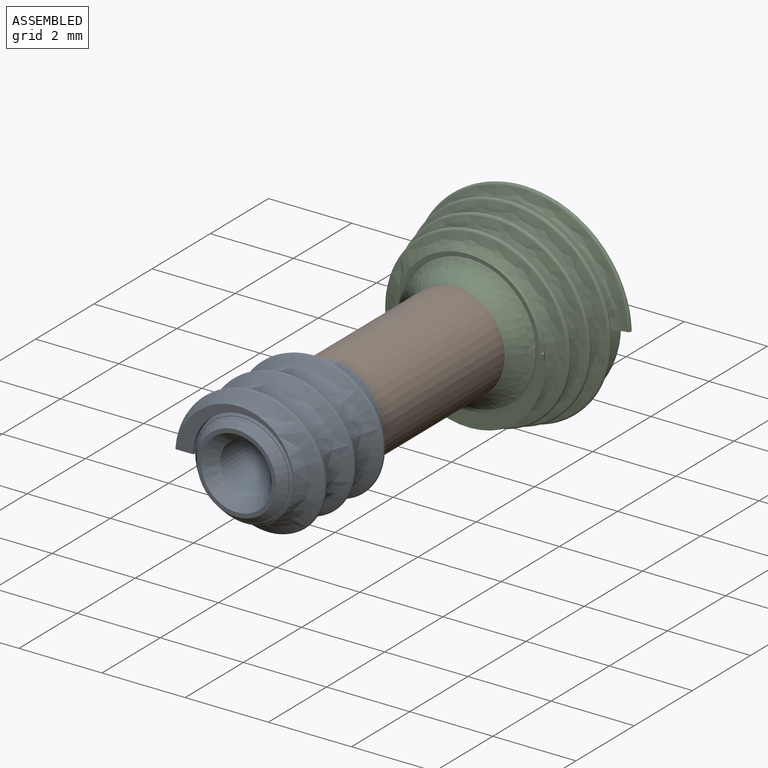
[diagram: assembled view]
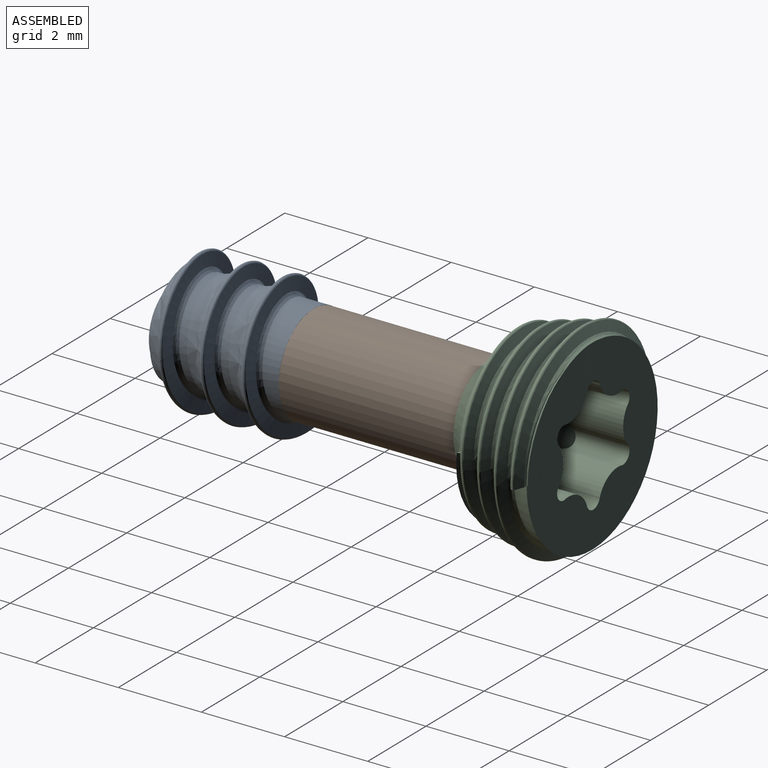
[diagram: assembled view, second angle]
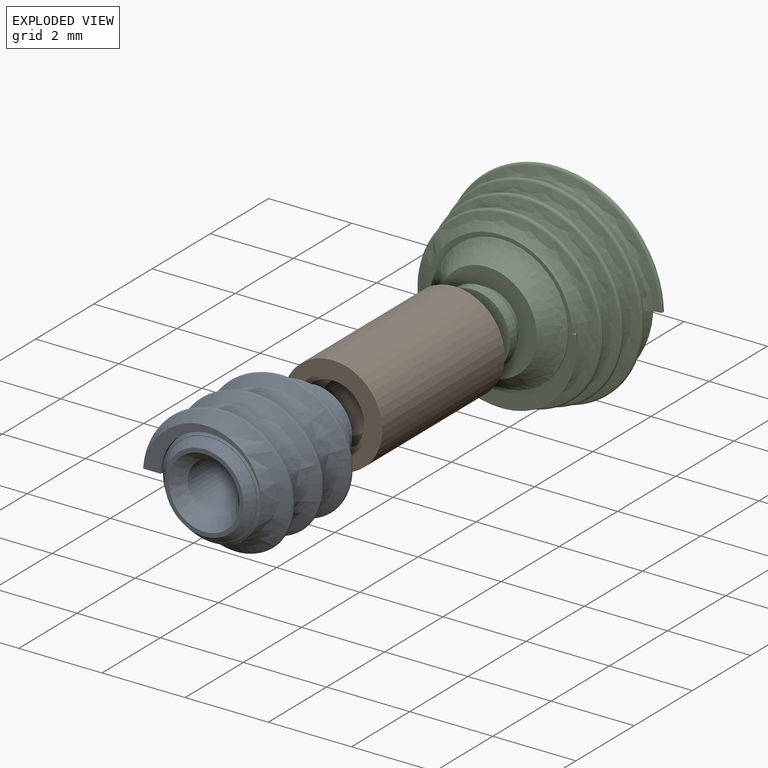
[diagram: exploded view]
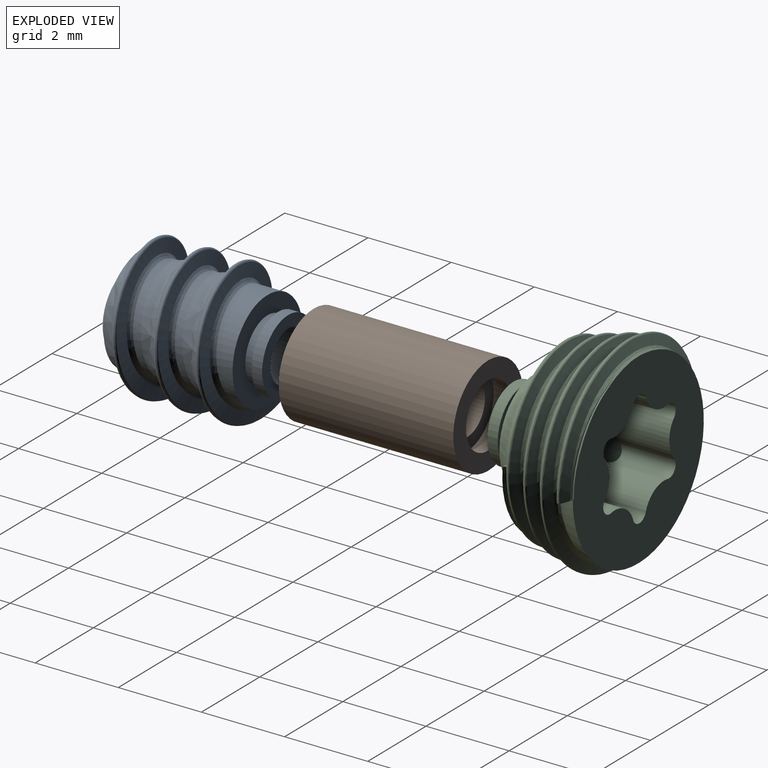
[diagram: exploded view, second angle]
ASSEMBLY  parts=3 mates=2
PART A: 21 faces, bbox 3.7x4.6x4.2 mm
  f0: cone r=0.95mm half-angle=40deg, axis (0,1,0), area 1.7mm2, adj f8,f16
  f1: cone r=0.95mm half-angle=40deg, axis (0,1,0), area 0.8mm2, adj f2,f6,f15
  f2: bspline ~2.4x2.32mm, area 0.4mm2, adj f1,f3,f5,f14
  f3: plane 0.43x0.21mm, normal (0,-0.13,-0.99), area 0mm2, adj f2,f4,f6,f12,f13,f14
  f4: bspline ~3.8x3.3mm, area 3.7mm2, adj f3,f5,f11,f13,f14
  f5: bspline ~3.56x3.2mm, area 17mm2, adj f2,f4,f6,f11,f14
  f6: cylinder r=1.2mm len=3mm, axis (0,1,0), area 5.5mm2, adj f1,f3,f5,f9,f11,f12
  f7: cylinder r=0.6mm len=3.5mm, axis (0,1,0), area 13.2mm2, adj f10,f19
  f8: plane 1.9x1.9mm, normal (0,-1,0), area 0.6mm2, adj f0,f10
  f9: plane 2.82x2.42mm, normal (0,1,0), area 2.8mm2, adj f6,f11,f12,f13,f17
  f10: cone r=0.6mm half-angle=40deg, axis (0,-1,0), area 1.8mm2, adj f7,f8
  f11: plane 0.68x0.44mm, normal (0.01,0.13,0.99), area 0.1mm2, adj f4,f5,f6,f9,f13
  f12: bspline ~3.07x2.56mm, area 3mm2, adj f3,f6,f9,f13
  f13: bspline ~3.7x3.2mm, area 8.7mm2, adj f3,f4,f9,f11,f12
  f14: plane 3.23x2.48mm, normal (0,-1,0), area 0.7mm2, adj f2,f3,f4,f5
  f15: plane 2.26x2.26mm, normal (0,-1,0), area 0.1mm2, adj f1,f16
  f16: cylinder r=1.12mm len=2.24mm, axis (0,-1,0), area 0.1mm2, adj f0,f15
  f17: cylinder r=0.76mm len=1.52mm, axis (0,-1,0), area 1.2mm2, adj f9,f20
  f18: cylinder r=0.9mm len=1.8mm, axis (0,-1,0), area 1.4mm2, adj f19,f20
  f19: plane 1.8x1.8mm, normal (0,1,0), area 1.4mm2, adj f7,f18
  f20: plane 1.8x1.8mm, normal (0,-1,0), area 0.7mm2, adj f17,f18
PART B: 12 faces, bbox 2.4x4.2x2.4 mm
  f0: cylinder r=0.76mm len=1.52mm, axis (0,1,0), area 1.2mm2, adj f4,f9
  f1: cylinder r=0.76mm len=1.52mm, axis (0,1,0), area 1.2mm2, adj f3,f6
  f2: cylinder r=1.2mm len=4.2mm, axis (0,1,0), area 31.7mm2, adj f3,f4
  f3: plane 2.4x2.4mm, normal (0,-1,0), area 2.7mm2, adj f1,f2
  f4: plane 2.4x2.4mm, normal (0,1,0), area 2.7mm2, adj f0,f2
  f5: cylinder r=0.9mm len=1.8mm, axis (0,1,0), area 1.4mm2, adj f6,f7
  f6: plane 1.8x1.8mm, normal (0,1,0), area 0.7mm2, adj f1,f5
  f7: plane 1.8x1.8mm, normal (0,-1,0), area 1.4mm2, adj f5,f11
  f8: cylinder r=0.9mm len=1.8mm, axis (0,-1,0), area 1.4mm2, adj f9,f10
  f9: plane 1.8x1.8mm, normal (0,-1,0), area 0.7mm2, adj f0,f8
  f10: plane 1.8x1.8mm, normal (0,1,0), area 1.4mm2, adj f8,f11
  f11: cylinder r=0.6mm len=3.2mm, axis (0,1,0), area 12.1mm2, adj f7,f10
PART C: 33 faces, bbox 5.9x3.9x5.9 mm
  f0: plane 2.4x2.4mm, normal (0,-1,0), area 2.7mm2, adj f1,f2
  f1: bspline ~3.4x3.4mm, area 5.6mm2, adj f0,f7
  f2: cylinder r=0.76mm len=1.52mm, axis (0,1,0), area 1.2mm2, adj f0,f5
  f3: cylinder r=0.9mm len=1.8mm, axis (0,1,0), area 1.4mm2, adj f4,f5
  f4: plane 1.8x1.8mm, normal (0,-1,0), area 1.4mm2, adj f3,f6
  f5: plane 1.8x1.8mm, normal (0,1,0), area 0.7mm2, adj f2,f3
  f6: cylinder r=0.6mm len=1.2mm, axis (0,-1,0), area 3.8mm2, adj f4,f32
  f7: cylinder r=1.61mm len=3.22mm, axis (0,1,0), area 0.2mm2, adj f1,f17
  f8: bspline ~2.8x2.27mm, area 0.1mm2, adj f13,f14,f16,f19
  f9: bspline ~5.12x5.05mm, area 13mm2, adj f10,f11,f13,f14,f15,f17
  f10: plane 0.12x0.1mm, normal (-0.01,-0.04,1), area 0mm2, adj f9,f14,f17,f18
  f11: bspline ~5.19x5.12mm, area 6.4mm2, adj f9,f12,f13,f17
  f12: bspline ~5.07x5mm, area 20.3mm2, adj f11,f13,f17,f18
  f13: plane 0.44x0.41mm, normal (0.01,0.04,-1), area 0.1mm2, adj f8,f9,f11,f12,f15,f16,f18
  f14: bspline ~4.66x4.59mm, area 6.2mm2, adj f8,f9,f10,f15,f16,f18,f19
  f15: plane 2.15x1.62mm, normal (0,1,0), area 0.1mm2, adj f9,f13,f14,f16
  f16: cylinder r=2.26mm len=2.13mm, axis (0,-1,0), area 0.1mm2, adj f8,f13,f14,f15
  f17: plane 4.02x3.89mm, normal (0,-1,0), area 2.6mm2, adj f7,f9,f10,f11,f12,f18
  f18: cone r=2.25mm half-angle=15.4deg, axis (0,1,0), area 1.6mm2, adj f10,f12,f13,f14,f17,f19
  f19: plane 4.51x4.51mm, normal (0,1,0), area 11.5mm2, adj f8,f14,f18,f20,f21,f22,f23,f24
  f20: cylinder r=0.67mm len=1.41mm, axis (0,1,0), area 1.2mm2, adj f19,f21,f31,f32
  f21: cylinder r=0.23mm len=1.39mm, axis (0,1,0), area 0.9mm2, adj f19,f20,f22,f32
  f22: cylinder r=0.68mm len=1.38mm, axis (0,1,0), area 1.2mm2, adj f19,f21,f23,f32
  f23: cylinder r=0.23mm len=1.38mm, axis (0,1,0), area 0.9mm2, adj f19,f22,f24,f32
  f24: cylinder r=0.68mm len=1.4mm, axis (0,1,0), area 1.2mm2, adj f19,f23,f25,f32
  f25: cylinder r=0.23mm len=1.4mm, axis (0,1,0), area 0.9mm2, adj f19,f24,f26,f32
  f26: cylinder r=0.69mm len=1.42mm, axis (0,1,0), area 1.2mm2, adj f19,f25,f27,f32
  f27: cylinder r=0.23mm len=1.43mm, axis (0,1,0), area 0.9mm2, adj f19,f26,f28,f32
  f28: cylinder r=0.68mm len=1.59mm, axis (0,1,0), area 1.3mm2, adj f19,f27,f29,f32
  f29: cylinder r=0.23mm len=1.43mm, axis (0,1,0), area 0.9mm2, adj f19,f28,f30,f32
  f30: cylinder r=0.68mm len=1.43mm, axis (0,1,0), area 1.3mm2, adj f19,f29,f31,f32
  f31: cylinder r=0.23mm len=1.42mm, axis (0,1,0), area 0.9mm2, adj f19,f20,f30,f32
  f32: torus R=2.6mm, axis (0,1,0), area 4.5mm2, adj f6,f20,f21,f22,f23,f24,f25,f26
PLACE A t=(-3.9,-6.23,-2.82)mm
PLACE B t=(-3.9,-2.03,-2.82)mm
PLACE C t=(-3.9,0.47,-2.82)mm
MATE fastened A.f16 <-> B.f2  axis (0,1,0) through (-3.9,-5.73,-2.82)mm
MATE fastened C.f3 <-> B.f2  axis (0,-1,0) through (-3.9,-2.53,-2.82)mm
